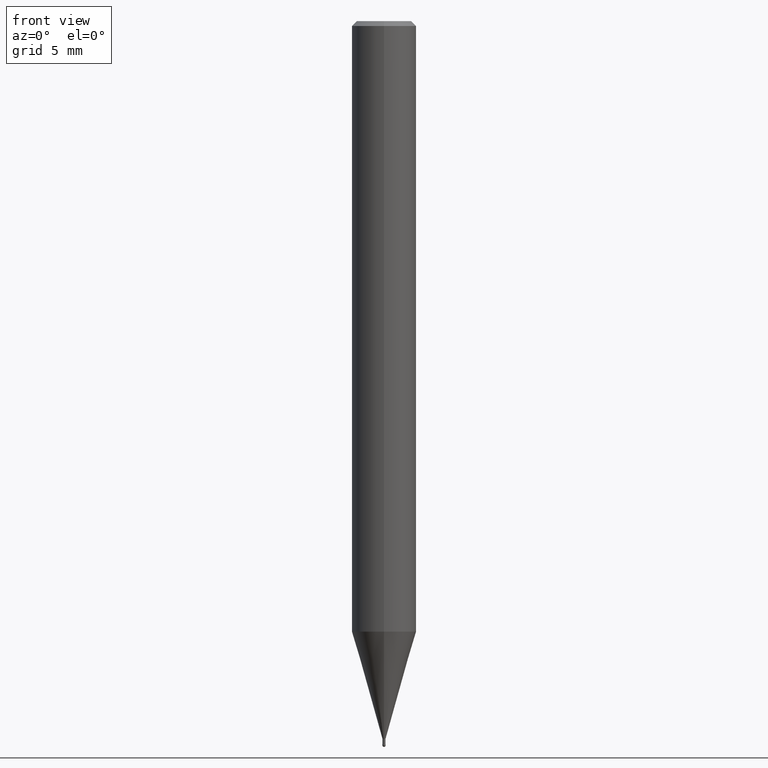
[diagram: clean part render]
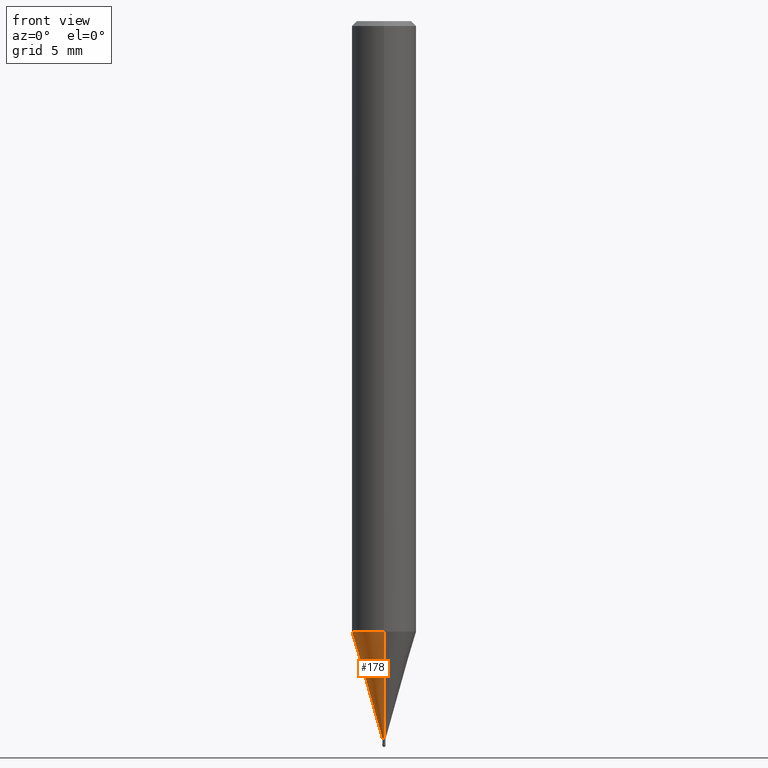
[diagram: same view with one face highlighted and labeled with its STEP entity id]
A machine part, front view. The second image highlights one B-rep face of the part: STEP entity #178.
In plain terms, the highlighted conical surface has half-angle 15.999 deg.
Its self-contained STEP definition (entity closure, byte-faithful):
#94=EDGE_CURVE('',#194,#124,#235,.T.);
#108=EDGE_CURVE('',#124,#166,#251,.T.);
#124=VERTEX_POINT('',#269);
#134=EDGE_CURVE('',#166,#214,#281,.T.);
#166=VERTEX_POINT('',#316);
#174=EDGE_CURVE('',#194,#214,#324,.T.);
#178=ADVANCED_FACE('',(#329),#330,.T.);
#194=VERTEX_POINT('',#349);
#214=VERTEX_POINT('',#372);
#235=LINE('',#386,#387);
#251=CIRCLE('',#408,1.99995);
#269=CARTESIAN_POINT('',(2.44915147732706E-016,-1.99995,-37.856));
#281=LINE('',#444,#445);
#316=CARTESIAN_POINT('',(0.0,1.99995,-37.856));
#324=CIRCLE('',#499,0.09495);
#329=FACE_OUTER_BOUND('',#504,.T.);
#330=CONICAL_SURFACE('',#505,1.04745,0.279233718115795);
#349=CARTESIAN_POINT('',(1.16276373295435E-017,-0.09495,-44.5));
#372=CARTESIAN_POINT('',(0.0,0.09495,-44.5));
#386=CARTESIAN_POINT('',(1.28271392531125E-016,-1.04745,-41.178));
#387=VECTOR('',#559,1.0);
#408=AXIS2_PLACEMENT_3D('',#581,#582,#583);
#444=CARTESIAN_POINT('',(-1.28271392531125E-016,1.04745,-41.178));
#445=VECTOR('',#622,1.0);
#499=AXIS2_PLACEMENT_3D('',#661,#662,#663);
#504=EDGE_LOOP('',(#673,#674,#675,#676));
#505=AXIS2_PLACEMENT_3D('',#677,#678,#679);
#559=DIRECTION('',(3.37524935540219E-017,-0.275619128127744,0.961266922457078));
#581=CARTESIAN_POINT('',(0.0,0.0,-37.856));
#582=DIRECTION('',(0.0,0.0,-1.0));
#583=DIRECTION('',(0.0,1.0,0.0));
#622=DIRECTION('',(3.37524935540219E-017,-0.275619128127744,-0.961266922457078));
#661=CARTESIAN_POINT('',(0.0,0.0,-44.5));
#662=DIRECTION('',(0.0,0.0,-1.0));
#663=DIRECTION('',(0.0,1.0,0.0));
#673=ORIENTED_EDGE('',*,*,#134,.T.);
#674=ORIENTED_EDGE('',*,*,#174,.F.);
#675=ORIENTED_EDGE('',*,*,#94,.T.);
#676=ORIENTED_EDGE('',*,*,#108,.T.);
#677=CARTESIAN_POINT('',(0.0,0.0,-41.178));
#678=DIRECTION('',(-0.0,-0.0,1.0));
#679=DIRECTION('',(0.0,1.0,0.0));